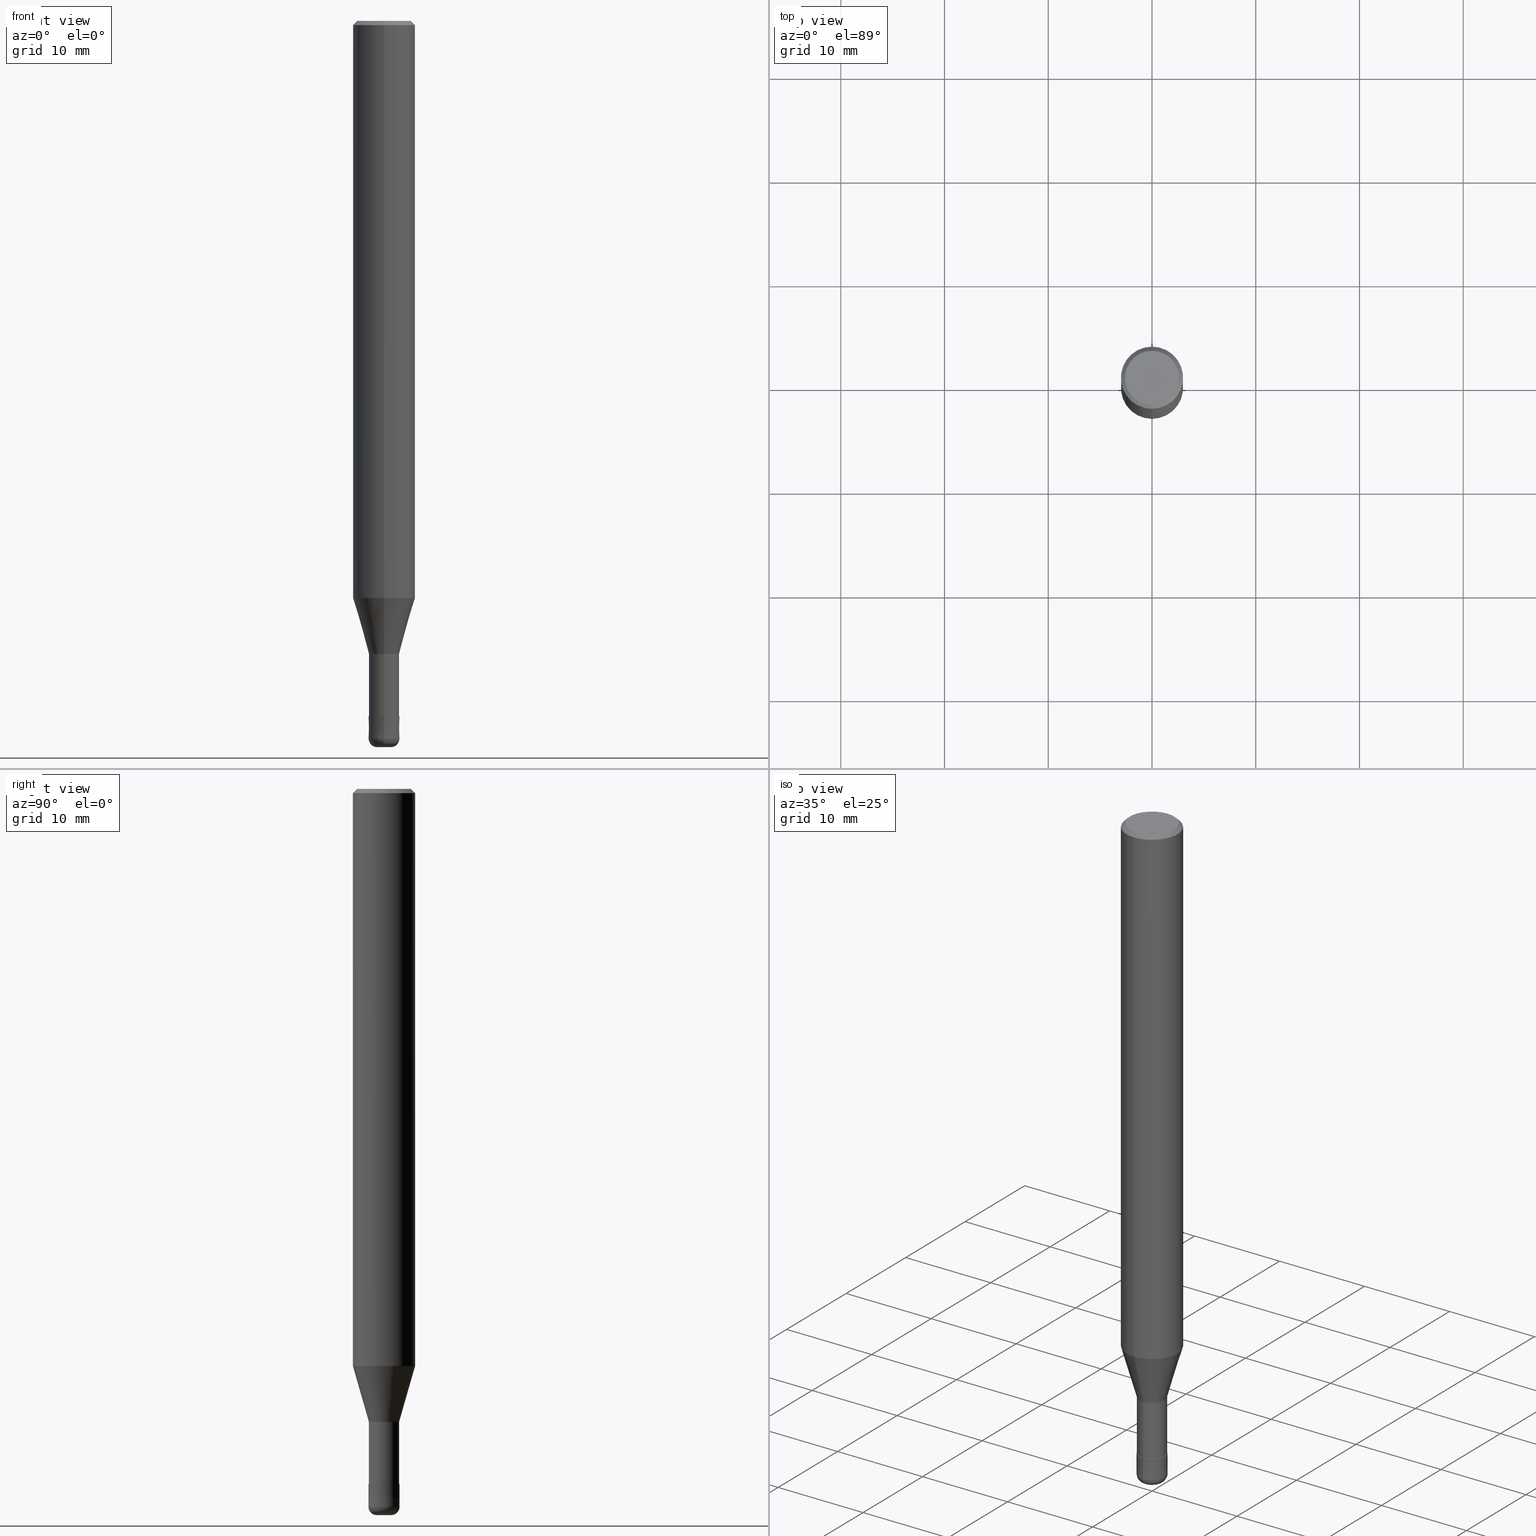
[diagram: canonical four-view strip — front | top / right | iso, engineering-drawing reading convention]
A machine part, canonical four-view strip (front | top / right | iso — engineering-drawing reading convention). The complete STEP part file that produces these views, byte-faithful:
ISO-10303-21;
HEADER;
FILE_DESCRIPTION(('no description'),'unknown implementation level');
FILE_NAME('CRRS4030-08-09-Huellk.stp','  ',('CIMSOURCE GmbH'),('CADClick - KiM GmbH - www.kimweb.de'),'unknown preprocess','ACIS','unknown authorization');
FILE_SCHEMA(('automotive_design'));
ENDSEC;
DATA;
#1=MECHANICAL_DESIGN_GEOMETRIC_PRESENTATION_REPRESENTATION(' ',(#14,#15,#16,#17,#18,#19,#20,#21,#22,#23,#24,#25,#26,#27,#28,#29,#30,#31,#32,#33,#34,#35,#36,#37,#38,#39,#40,#41,#42,#43,#44,#45,#46,#47,#48,#49,#50,#51,#52,#53,#54,#55,#56,#57,#58,#59,#60,#61,#62,#63,#64,#65,#66,#67,#68,#69,#70,#71,#72,#73,#74,#75,#76,#77,#78,#79,#80),#10);
#2=PRODUCT_DEFINITION_CONTEXT('',#81,'design');
#3=APPLICATION_PROTOCOL_DEFINITION('INTERNATIONAL STANDARD','automotive_design',1994,#81);
#4=PRODUCT_CATEGORY_RELATIONSHIP('NONE','NONE',#82,#83);
#5=SHAPE_DEFINITION_REPRESENTATION(#84,#85);
#6=PRODUCT_DEFINITION_CONTEXT('',#86,'design');
#7=APPLICATION_PROTOCOL_DEFINITION('INTERNATIONAL STANDARD','automotive_design',1994,#86);
#8=PRODUCT_CATEGORY_RELATIONSHIP('NONE','NONE',#87,#88);
#9=SHAPE_DEFINITION_REPRESENTATION(#89,#90);
#10= (GEOMETRIC_REPRESENTATION_CONTEXT(3)GLOBAL_UNCERTAINTY_ASSIGNED_CONTEXT((#93))GLOBAL_UNIT_ASSIGNED_CONTEXT((#95,#96,#97))REPRESENTATION_CONTEXT('NONE','WORKSPACE'));
#14=STYLED_ITEM('',(#99),#100);
#15=STYLED_ITEM('',(#101),#102);
#16=STYLED_ITEM('',(#103),#104);
#17=STYLED_ITEM('',(#105),#106);
#18=STYLED_ITEM('',(#107),#108);
#19=STYLED_ITEM('',(#109),#110);
#20=STYLED_ITEM('',(#111),#112);
#21=STYLED_ITEM('',(#113),#114);
#22=STYLED_ITEM('',(#115),#116);
#23=STYLED_ITEM('',(#117),#118);
#24=STYLED_ITEM('',(#119),#120);
#25=STYLED_ITEM('',(#121),#122);
#26=STYLED_ITEM('',(#123),#124);
#27=STYLED_ITEM('',(#125),#126);
#28=STYLED_ITEM('',(#127),#128);
#29=STYLED_ITEM('',(#129),#130);
#30=STYLED_ITEM('',(#131),#132);
#31=STYLED_ITEM('',(#133),#134);
#32=STYLED_ITEM('',(#135),#136);
#33=STYLED_ITEM('',(#137),#138);
#34=STYLED_ITEM('',(#139),#140);
#35=STYLED_ITEM('',(#141),#142);
#36=STYLED_ITEM('',(#143),#144);
#37=STYLED_ITEM('',(#145),#146);
#38=STYLED_ITEM('',(#147),#148);
#39=STYLED_ITEM('',(#149),#150);
#40=STYLED_ITEM('',(#151),#152);
#41=STYLED_ITEM('',(#153),#154);
#42=STYLED_ITEM('',(#155),#156);
#43=STYLED_ITEM('',(#157),#158);
#44=STYLED_ITEM('',(#159),#160);
#45=STYLED_ITEM('',(#161),#162);
#46=STYLED_ITEM('',(#163),#164);
#47=STYLED_ITEM('',(#165),#166);
#48=STYLED_ITEM('',(#167),#168);
#49=STYLED_ITEM('',(#169),#170);
#50=STYLED_ITEM('',(#171),#172);
#51=STYLED_ITEM('',(#173),#174);
#52=STYLED_ITEM('',(#175),#176);
#53=STYLED_ITEM('',(#177),#178);
#54=STYLED_ITEM('',(#179),#180);
#55=STYLED_ITEM('',(#181),#182);
#56=STYLED_ITEM('',(#183),#184);
#57=STYLED_ITEM('',(#185),#186);
#58=STYLED_ITEM('',(#187),#188);
#59=STYLED_ITEM('',(#189),#190);
#60=STYLED_ITEM('',(#191),#192);
#61=STYLED_ITEM('',(#193),#194);
#62=STYLED_ITEM('',(#195),#196);
#63=STYLED_ITEM('',(#197),#198);
#64=STYLED_ITEM('',(#199),#200);
#65=STYLED_ITEM('',(#201),#202);
#66=STYLED_ITEM('',(#203),#204);
#67=STYLED_ITEM('',(#205),#206);
#68=STYLED_ITEM('',(#207),#208);
#69=STYLED_ITEM('',(#209),#210);
#70=STYLED_ITEM('',(#211),#212);
#71=STYLED_ITEM('',(#213),#214);
#72=STYLED_ITEM('',(#215),#216);
#73=STYLED_ITEM('',(#217),#218);
#74=STYLED_ITEM('',(#219),#220);
#75=STYLED_ITEM('',(#221),#222);
#76=STYLED_ITEM('',(#223),#224);
#77=STYLED_ITEM('',(#225),#226);
#78=STYLED_ITEM('',(#227),#228);
#79=STYLED_ITEM('',(#229),#230);
#80=STYLED_ITEM('',(#231),#232);
#81=APPLICATION_CONTEXT(' ');
#82=PRODUCT_CATEGORY('part','NONE');
#83=PRODUCT_RELATED_PRODUCT_CATEGORY('detail',' ',(#233));
#84=PRODUCT_DEFINITION_SHAPE('NONE','NONE',#234);
#85=ADVANCED_BREP_SHAPE_REPRESENTATION('1',(#188,#235),#10);
#86=APPLICATION_CONTEXT(' ');
#87=PRODUCT_CATEGORY('part','NONE');
#88=PRODUCT_RELATED_PRODUCT_CATEGORY('detail',' ',(#236));
#89=PRODUCT_DEFINITION_SHAPE('NONE','NONE',#237);
#90=ADVANCED_BREP_SHAPE_REPRESENTATION('2',(#172,#238),#10);
#93=UNCERTAINTY_MEASURE_WITH_UNIT(LENGTH_MEASURE(1.0E-006),#95,'','');
#95= (CONVERSION_BASED_UNIT('MILLIMETRE',#241)LENGTH_UNIT()NAMED_UNIT(#244));
#96= (NAMED_UNIT(#246)PLANE_ANGLE_UNIT()SI_UNIT($,.RADIAN.));
#97= (NAMED_UNIT(#246)SOLID_ANGLE_UNIT()SI_UNIT($,.STERADIAN.));
#99=PRESENTATION_STYLE_ASSIGNMENT((#252));
#100=ADVANCED_FACE('',(#253),#254,.T.);
#101=PRESENTATION_STYLE_ASSIGNMENT((#255));
#102=ADVANCED_FACE('',(#256),#257,.T.);
#103=PRESENTATION_STYLE_ASSIGNMENT((#258));
#104=VERTEX_POINT('',#259);
#105=PRESENTATION_STYLE_ASSIGNMENT((#260));
#106=ADVANCED_FACE('',(#261),#262,.T.);
#107=PRESENTATION_STYLE_ASSIGNMENT((#263));
#108=EDGE_CURVE('',#216,#104,#264,.T.);
#109=PRESENTATION_STYLE_ASSIGNMENT((#265));
#110=VERTEX_POINT('',#266);
#111=PRESENTATION_STYLE_ASSIGNMENT((#267));
#112=VERTEX_POINT('',#268);
#113=PRESENTATION_STYLE_ASSIGNMENT((#269));
#114=EDGE_CURVE('',#152,#112,#270,.T.);
#115=PRESENTATION_STYLE_ASSIGNMENT((#271));
#116=ADVANCED_FACE('',(#272),#273,.T.);
#117=PRESENTATION_STYLE_ASSIGNMENT((#274));
#118=ADVANCED_FACE('',(#275),#276,.T.);
#119=PRESENTATION_STYLE_ASSIGNMENT((#277));
#120=EDGE_CURVE('',#112,#170,#278,.T.);
#121=PRESENTATION_STYLE_ASSIGNMENT((#279));
#122=ADVANCED_FACE('',(#280),#281,.T.);
#123=PRESENTATION_STYLE_ASSIGNMENT((#282));
#124=VERTEX_POINT('',#283);
#125=PRESENTATION_STYLE_ASSIGNMENT((#284));
#126=EDGE_CURVE('',#204,#198,#285,.T.);
#127=PRESENTATION_STYLE_ASSIGNMENT((#286));
#128=EDGE_CURVE('',#112,#196,#287,.T.);
#129=PRESENTATION_STYLE_ASSIGNMENT((#288));
#130=EDGE_CURVE('',#194,#152,#289,.T.);
#131=PRESENTATION_STYLE_ASSIGNMENT((#290));
#132=ADVANCED_FACE('',(#291),#292,.T.);
#133=PRESENTATION_STYLE_ASSIGNMENT((#293));
#134=VERTEX_POINT('',#294);
#135=PRESENTATION_STYLE_ASSIGNMENT((#295));
#136=EDGE_CURVE('',#206,#104,#296,.T.);
#137=PRESENTATION_STYLE_ASSIGNMENT((#297));
#138=ADVANCED_FACE('',(#298),#299,.T.);
#139=PRESENTATION_STYLE_ASSIGNMENT((#300));
#140=EDGE_CURVE('',#198,#204,#301,.T.);
#141=PRESENTATION_STYLE_ASSIGNMENT((#302));
#142=VERTEX_POINT('',#303);
#143=PRESENTATION_STYLE_ASSIGNMENT((#304));
#144=EDGE_CURVE('',#134,#226,#305,.T.);
#145=PRESENTATION_STYLE_ASSIGNMENT((#306));
#146=EDGE_CURVE('',#110,#216,#307,.T.);
#147=PRESENTATION_STYLE_ASSIGNMENT((#308));
#148=EDGE_CURVE('',#104,#154,#309,.T.);
#149=PRESENTATION_STYLE_ASSIGNMENT((#310));
#150=EDGE_CURVE('',#226,#134,#311,.T.);
#151=PRESENTATION_STYLE_ASSIGNMENT((#312));
#152=VERTEX_POINT('',#313);
#153=PRESENTATION_STYLE_ASSIGNMENT((#314));
#154=VERTEX_POINT('',#315);
#155=PRESENTATION_STYLE_ASSIGNMENT((#316));
#156=ADVANCED_FACE('',(#317),#318,.T.);
#157=PRESENTATION_STYLE_ASSIGNMENT((#319));
#158=EDGE_CURVE('',#196,#112,#320,.T.);
#159=PRESENTATION_STYLE_ASSIGNMENT((#321));
#160=EDGE_CURVE('',#104,#206,#322,.T.);
#161=PRESENTATION_STYLE_ASSIGNMENT((#323));
#162=VERTEX_POINT('',#324);
#163=PRESENTATION_STYLE_ASSIGNMENT((#325));
#164=EDGE_CURVE('',#204,#142,#326,.T.);
#165=PRESENTATION_STYLE_ASSIGNMENT((#327));
#166=EDGE_CURVE('',#134,#142,#328,.T.);
#167=PRESENTATION_STYLE_ASSIGNMENT((#329));
#168=EDGE_CURVE('',#196,#194,#330,.T.);
#169=PRESENTATION_STYLE_ASSIGNMENT((#331));
#170=VERTEX_POINT('',#332);
#171=PRESENTATION_STYLE_ASSIGNMENT((#333));
#172=MANIFOLD_SOLID_BREP('2',#334);
#173=PRESENTATION_STYLE_ASSIGNMENT((#335));
#174=ADVANCED_FACE('',(#336),#337,.T.);
#175=PRESENTATION_STYLE_ASSIGNMENT((#338));
#176=ADVANCED_FACE('',(#339),#340,.T.);
#177=PRESENTATION_STYLE_ASSIGNMENT((#341));
#178=EDGE_CURVE('',#206,#110,#342,.T.);
#179=PRESENTATION_STYLE_ASSIGNMENT((#343));
#180=EDGE_CURVE('',#184,#206,#344,.T.);
#181=PRESENTATION_STYLE_ASSIGNMENT((#345));
#182=EDGE_CURVE('',#162,#170,#346,.T.);
#183=PRESENTATION_STYLE_ASSIGNMENT((#347));
#184=VERTEX_POINT('',#348);
#185=PRESENTATION_STYLE_ASSIGNMENT((#349));
#186=EDGE_CURVE('',#162,#196,#350,.T.);
#187=PRESENTATION_STYLE_ASSIGNMENT((#351));
#188=MANIFOLD_SOLID_BREP('1',#352);
#189=PRESENTATION_STYLE_ASSIGNMENT((#353));
#190=ADVANCED_FACE('',(#354),#355,.T.);
#191=PRESENTATION_STYLE_ASSIGNMENT((#356));
#192=ADVANCED_FACE('',(#357),#358,.T.);
#193=PRESENTATION_STYLE_ASSIGNMENT((#359));
#194=VERTEX_POINT('',#360);
#195=PRESENTATION_STYLE_ASSIGNMENT((#361));
#196=VERTEX_POINT('',#362);
#197=PRESENTATION_STYLE_ASSIGNMENT((#363));
#198=VERTEX_POINT('',#364);
#199=PRESENTATION_STYLE_ASSIGNMENT((#365));
#200=EDGE_CURVE('',#124,#142,#366,.T.);
#201=PRESENTATION_STYLE_ASSIGNMENT((#367));
#202=EDGE_CURVE('',#152,#194,#368,.T.);
#203=PRESENTATION_STYLE_ASSIGNMENT((#369));
#204=VERTEX_POINT('',#370);
#205=PRESENTATION_STYLE_ASSIGNMENT((#371));
#206=VERTEX_POINT('',#372);
#207=PRESENTATION_STYLE_ASSIGNMENT((#373));
#208=ADVANCED_FACE('',(#374,#375),#376,.T.);
#209=PRESENTATION_STYLE_ASSIGNMENT((#377));
#210=ADVANCED_FACE('',(#378),#379,.T.);
#211=PRESENTATION_STYLE_ASSIGNMENT((#380));
#212=ADVANCED_FACE('',(#381),#382,.T.);
#213=PRESENTATION_STYLE_ASSIGNMENT((#383));
#214=EDGE_CURVE('',#154,#184,#384,.T.);
#215=PRESENTATION_STYLE_ASSIGNMENT((#385));
#216=VERTEX_POINT('',#386);
#217=PRESENTATION_STYLE_ASSIGNMENT((#387));
#218=EDGE_CURVE('',#142,#124,#388,.T.);
#219=PRESENTATION_STYLE_ASSIGNMENT((#389));
#220=EDGE_CURVE('',#184,#154,#390,.T.);
#221=PRESENTATION_STYLE_ASSIGNMENT((#391));
#222=EDGE_CURVE('',#216,#110,#392,.T.);
#223=PRESENTATION_STYLE_ASSIGNMENT((#393));
#224=EDGE_CURVE('',#124,#198,#394,.T.);
#225=PRESENTATION_STYLE_ASSIGNMENT((#395));
#226=VERTEX_POINT('',#396);
#227=PRESENTATION_STYLE_ASSIGNMENT((#397));
#228=ADVANCED_FACE('',(#398),#399,.T.);
#229=PRESENTATION_STYLE_ASSIGNMENT((#400));
#230=EDGE_CURVE('',#124,#226,#401,.T.);
#231=PRESENTATION_STYLE_ASSIGNMENT((#402));
#232=EDGE_CURVE('',#170,#162,#403,.T.);
#233=PRODUCT('1','1','PART-1-DESC',(#404));
#234=PRODUCT_DEFINITION('NONE','NONE',#405,#2);
#235=AXIS2_PLACEMENT_3D('',#406,#407,#408);
#236=PRODUCT('2','2','PART-2-DESC',(#409));
#237=PRODUCT_DEFINITION('NONE','NONE',#410,#6);
#238=AXIS2_PLACEMENT_3D('',#411,#412,#413);
#241=LENGTH_MEASURE_WITH_UNIT(LENGTH_MEASURE(1.0),#414);
#244=DIMENSIONAL_EXPONENTS(1.0,0.0,0.0,0.0,0.0,0.0,0.0);
#246=DIMENSIONAL_EXPONENTS(0.0,0.0,0.0,0.0,0.0,0.0,0.0);
#252=SURFACE_STYLE_USAGE(.BOTH.,#415);
#253=FACE_OUTER_BOUND('',#416,.T.);
#254=CONICAL_SURFACE('',#417,2.22995,0.279233847587005);
#255=SURFACE_STYLE_USAGE(.BOTH.,#418);
#256=FACE_OUTER_BOUND('',#419,.T.);
#257=PLANE('',#420);
#258=POINT_STYLE(' ',#421,POSITIVE_LENGTH_MEASURE(1.0E-006),#422);
#259=CARTESIAN_POINT('',(0.0,3.0,-0.399999999999999));
#260=SURFACE_STYLE_USAGE(.BOTH.,#423);
#261=FACE_OUTER_BOUND('',#424,.T.);
#262=CONICAL_SURFACE('',#425,1.49995,4.54545454232357E-005);
#263=CURVE_STYLE('',#426,POSITIVE_LENGTH_MEASURE(1.0E-006),#427);
#264=LINE('',#428,#429);
#265=POINT_STYLE(' ',#430,POSITIVE_LENGTH_MEASURE(1.0E-006),#431);
#266=CARTESIAN_POINT('',(3.18397651993818E-016,-2.6,0.0));
#267=POINT_STYLE(' ',#432,POSITIVE_LENGTH_MEASURE(1.0E-006),#433);
#268=CARTESIAN_POINT('',(1.78786404626298E-016,-1.45995,-61.0));
#269=CURVE_STYLE('',#434,POSITIVE_LENGTH_MEASURE(1.0E-006),#435);
#270=LINE('',#436,#437);
#271=SURFACE_STYLE_USAGE(.BOTH.,#438);
#272=FACE_OUTER_BOUND('',#439,.T.);
#273=CONICAL_SURFACE('',#440,2.8,0.78539816339745);
#274=SURFACE_STYLE_USAGE(.BOTH.,#441);
#275=FACE_OUTER_BOUND('',#442,.T.);
#276=CYLINDRICAL_SURFACE('',#443,1.45995);
#277=CURVE_STYLE('',#444,POSITIVE_LENGTH_MEASURE(1.0E-006),#445);
#278=LINE('',#446,#447);
#279=SURFACE_STYLE_USAGE(.BOTH.,#448);
#280=FACE_OUTER_BOUND('',#449,.T.);
#281=PLANE('',#450);
#282=POINT_STYLE(' ',#451,POSITIVE_LENGTH_MEASURE(1.0E-006),#452);
#283=CARTESIAN_POINT('',(1.83690953073357E-016,-1.5,-69.2));
#284=CURVE_STYLE('',#453,POSITIVE_LENGTH_MEASURE(1.0E-006),#454);
#285=CIRCLE('',#455,0.7);
#286=CURVE_STYLE('',#456,POSITIVE_LENGTH_MEASURE(1.0E-006),#457);
#287=CIRCLE('',#458,1.45995);
#288=CURVE_STYLE('',#459,POSITIVE_LENGTH_MEASURE(1.0E-006),#460);
#289=CIRCLE('',#461,1.45995);
#290=SURFACE_STYLE_USAGE(.BOTH.,#462);
#291=FACE_OUTER_BOUND('',#463,.T.);
#292=TOROIDAL_SURFACE('',#464,0.700000000000001,0.799999999999999);
#293=POINT_STYLE(' ',#465,POSITIVE_LENGTH_MEASURE(1.0E-006),#466);
#294=CARTESIAN_POINT('',(0.0,1.4999,-67.0));
#295=CURVE_STYLE('',#467,POSITIVE_LENGTH_MEASURE(1.0E-006),#468);
#296=CIRCLE('',#469,3.0);
#297=SURFACE_STYLE_USAGE(.BOTH.,#470);
#298=FACE_OUTER_BOUND('',#471,.T.);
#299=CONICAL_SURFACE('',#472,2.22995,0.279233847587005);
#300=CURVE_STYLE('',#473,POSITIVE_LENGTH_MEASURE(1.0E-006),#474);
#301=CIRCLE('',#475,0.7);
#302=POINT_STYLE(' ',#476,POSITIVE_LENGTH_MEASURE(1.0E-006),#477);
#303=CARTESIAN_POINT('',(0.0,1.5,-69.2));
#304=CURVE_STYLE('',#478,POSITIVE_LENGTH_MEASURE(1.0E-006),#479);
#305=CIRCLE('',#480,1.4999);
#306=CURVE_STYLE('',#481,POSITIVE_LENGTH_MEASURE(1.0E-006),#482);
#307=CIRCLE('',#483,2.6);
#308=CURVE_STYLE('',#484,POSITIVE_LENGTH_MEASURE(1.0E-006),#485);
#309=LINE('',#486,#487);
#310=CURVE_STYLE('',#488,POSITIVE_LENGTH_MEASURE(1.0E-006),#489);
#311=CIRCLE('',#490,1.4999);
#312=POINT_STYLE(' ',#491,POSITIVE_LENGTH_MEASURE(1.0E-006),#492);
#313=CARTESIAN_POINT('',(1.78786404626298E-016,-1.45995,-67.0));
#314=POINT_STYLE(' ',#493,POSITIVE_LENGTH_MEASURE(1.0E-006),#494);
#315=CARTESIAN_POINT('',(0.0,3.0,-55.629));
#316=SURFACE_STYLE_USAGE(.BOTH.,#495);
#317=FACE_OUTER_BOUND('',#496,.T.);
#318=CYLINDRICAL_SURFACE('',#497,3.0);
#319=CURVE_STYLE('',#498,POSITIVE_LENGTH_MEASURE(1.0E-006),#499);
#320=CIRCLE('',#500,1.45995);
#321=CURVE_STYLE('',#501,POSITIVE_LENGTH_MEASURE(1.0E-006),#502);
#322=CIRCLE('',#503,3.0);
#323=POINT_STYLE(' ',#504,POSITIVE_LENGTH_MEASURE(1.0E-006),#505);
#324=CARTESIAN_POINT('',(0.0,2.99995,-55.629));
#325=CURVE_STYLE('',#506,POSITIVE_LENGTH_MEASURE(1.0E-006),#507);
#326=CIRCLE('',#508,0.799999999999999);
#327=CURVE_STYLE('',#509,POSITIVE_LENGTH_MEASURE(1.0E-006),#510);
#328=LINE('',#511,#512);
#329=CURVE_STYLE('',#513,POSITIVE_LENGTH_MEASURE(1.0E-006),#514);
#330=LINE('',#515,#516);
#331=POINT_STYLE(' ',#517,POSITIVE_LENGTH_MEASURE(1.0E-006),#518);
#332=CARTESIAN_POINT('',(3.67375783114944E-016,-2.99995,-55.629));
#333=SURFACE_STYLE_USAGE(.BOTH.,#519);
#334=CLOSED_SHELL('',(#132,#174,#228,#106,#210,#212));
#335=SURFACE_STYLE_USAGE(.BOTH.,#520);
#336=FACE_OUTER_BOUND('',#521,.T.);
#337=CONICAL_SURFACE('',#522,1.49995,4.54545454232357E-005);
#338=SURFACE_STYLE_USAGE(.BOTH.,#523);
#339=FACE_OUTER_BOUND('',#524,.T.);
#340=CYLINDRICAL_SURFACE('',#525,1.45995);
#341=CURVE_STYLE('',#526,POSITIVE_LENGTH_MEASURE(1.0E-006),#527);
#342=LINE('',#528,#529);
#343=CURVE_STYLE('',#530,POSITIVE_LENGTH_MEASURE(1.0E-006),#531);
#344=LINE('',#532,#533);
#345=CURVE_STYLE('',#534,POSITIVE_LENGTH_MEASURE(1.0E-006),#535);
#346=CIRCLE('',#536,2.99995);
#347=POINT_STYLE(' ',#537,POSITIVE_LENGTH_MEASURE(1.0E-006),#538);
#348=CARTESIAN_POINT('',(3.67381906146713E-016,-3.0,-55.629));
#349=CURVE_STYLE('',#539,POSITIVE_LENGTH_MEASURE(1.0E-006),#540);
#350=LINE('',#541,#542);
#351=SURFACE_STYLE_USAGE(.BOTH.,#543);
#352=CLOSED_SHELL('',(#176,#100,#156,#190,#208,#102,#116,#192,#138,#118,#122));
#353=SURFACE_STYLE_USAGE(.BOTH.,#544);
#354=FACE_OUTER_BOUND('',#545,.T.);
#355=CONICAL_SURFACE('',#546,2.8,0.78539816339745);
#356=SURFACE_STYLE_USAGE(.BOTH.,#547);
#357=FACE_OUTER_BOUND('',#548,.T.);
#358=CYLINDRICAL_SURFACE('',#549,3.0);
#359=POINT_STYLE(' ',#550,POSITIVE_LENGTH_MEASURE(1.0E-006),#551);
#360=CARTESIAN_POINT('',(0.0,1.45995,-67.0));
#361=POINT_STYLE(' ',#552,POSITIVE_LENGTH_MEASURE(1.0E-006),#553);
#362=CARTESIAN_POINT('',(0.0,1.45995,-61.0));
#363=POINT_STYLE(' ',#554,POSITIVE_LENGTH_MEASURE(1.0E-006),#555);
#364=CARTESIAN_POINT('',(8.57224447675664E-017,-0.7,-70.0));
#365=CURVE_STYLE('',#556,POSITIVE_LENGTH_MEASURE(1.0E-006),#557);
#366=CIRCLE('',#558,1.5);
#367=CURVE_STYLE('',#559,POSITIVE_LENGTH_MEASURE(1.0E-006),#560);
#368=CIRCLE('',#561,1.45995);
#369=POINT_STYLE(' ',#562,POSITIVE_LENGTH_MEASURE(1.0E-006),#563);
#370=CARTESIAN_POINT('',(0.0,0.7,-70.0));
#371=POINT_STYLE(' ',#564,POSITIVE_LENGTH_MEASURE(1.0E-006),#565);
#372=CARTESIAN_POINT('',(3.67381906146713E-016,-3.0,-0.399999999999999));
#373=SURFACE_STYLE_USAGE(.BOTH.,#566);
#374=FACE_OUTER_BOUND('',#567,.T.);
#375=FACE_BOUND('',#568,.T.);
#376=PLANE('',#569);
#377=SURFACE_STYLE_USAGE(.BOTH.,#570);
#378=FACE_OUTER_BOUND('',#571,.T.);
#379=TOROIDAL_SURFACE('',#572,0.700000000000001,0.799999999999999);
#380=SURFACE_STYLE_USAGE(.BOTH.,#573);
#381=FACE_OUTER_BOUND('',#574,.T.);
#382=PLANE('',#575);
#383=CURVE_STYLE('',#576,POSITIVE_LENGTH_MEASURE(1.0E-006),#577);
#384=CIRCLE('',#578,3.0);
#385=POINT_STYLE(' ',#579,POSITIVE_LENGTH_MEASURE(1.0E-006),#580);
#386=CARTESIAN_POINT('',(0.0,2.6,0.0));
#387=CURVE_STYLE('',#581,POSITIVE_LENGTH_MEASURE(1.0E-006),#582);
#388=CIRCLE('',#583,1.5);
#389=CURVE_STYLE('',#584,POSITIVE_LENGTH_MEASURE(1.0E-006),#585);
#390=CIRCLE('',#586,3.0);
#391=CURVE_STYLE('',#587,POSITIVE_LENGTH_MEASURE(1.0E-006),#588);
#392=CIRCLE('',#589,2.6);
#393=CURVE_STYLE('',#590,POSITIVE_LENGTH_MEASURE(1.0E-006),#591);
#394=CIRCLE('',#592,0.799999999999999);
#395=POINT_STYLE(' ',#593,POSITIVE_LENGTH_MEASURE(1.0E-006),#594);
#396=CARTESIAN_POINT('',(1.83678707009818E-016,-1.4999,-67.0));
#397=SURFACE_STYLE_USAGE(.BOTH.,#595);
#398=FACE_OUTER_BOUND('',#596,.T.);
#399=PLANE('',#597);
#400=CURVE_STYLE('',#598,POSITIVE_LENGTH_MEASURE(1.0E-006),#599);
#401=LINE('',#600,#601);
#402=CURVE_STYLE('',#602,POSITIVE_LENGTH_MEASURE(1.0E-006),#603);
#403=CIRCLE('',#604,2.99995);
#404=PRODUCT_CONTEXT('',#81,'mechanical');
#405=PRODUCT_DEFINITION_FORMATION_WITH_SPECIFIED_SOURCE(' ','NONE',#233,.NOT_KNOWN.);
#406=CARTESIAN_POINT('',(0.0,0.0,0.0));
#407=DIRECTION('',(0.0,0.0,1.0));
#408=DIRECTION('',(1.0,0.0,0.0));
#409=PRODUCT_CONTEXT('',#86,'mechanical');
#410=PRODUCT_DEFINITION_FORMATION_WITH_SPECIFIED_SOURCE(' ','NONE',#236,.NOT_KNOWN.);
#411=CARTESIAN_POINT('',(0.0,0.0,0.0));
#412=DIRECTION('',(0.0,0.0,1.0));
#413=DIRECTION('',(1.0,0.0,0.0));
#414= (NAMED_UNIT(#244)LENGTH_UNIT()SI_UNIT(.MILLI.,.METRE.));
#415=SURFACE_SIDE_STYLE('',(#606));
#416=EDGE_LOOP('',(#607,#608,#609,#610));
#417=AXIS2_PLACEMENT_3D('',#611,#612,#613);
#418=SURFACE_SIDE_STYLE('',(#614));
#419=EDGE_LOOP('',(#615,#616));
#420=AXIS2_PLACEMENT_3D('',#617,#618,#619);
#421=PRE_DEFINED_MARKER('');
#422=COLOUR_RGB('',0.498039215803146,0.498039215803146,0.498039215803146);
#423=SURFACE_SIDE_STYLE('',(#620));
#424=EDGE_LOOP('',(#621,#622,#623,#624));
#425=AXIS2_PLACEMENT_3D('',#625,#626,#627);
#426=DRAUGHTING_PRE_DEFINED_CURVE_FONT('continuous');
#427=COLOUR_RGB('',0.498039215803146,0.498039215803146,0.498039215803146);
#428=CARTESIAN_POINT('',(-3.42889779070266E-016,2.8,-0.200000000000003));
#429=VECTOR('',#628,1.0);
#430=PRE_DEFINED_MARKER('');
#431=COLOUR_RGB('',0.498039215803146,0.498039215803146,0.498039215803146);
#432=PRE_DEFINED_MARKER('');
#433=COLOUR_RGB('',0.498039215803146,0.498039215803146,0.498039215803146);
#434=DRAUGHTING_PRE_DEFINED_CURVE_FONT('continuous');
#435=COLOUR_RGB('',0.498039215803146,0.498039215803146,0.498039215803146);
#436=CARTESIAN_POINT('',(1.78786404626298E-016,-1.45995,-64.0));
#437=VECTOR('',#629,1.0);
#438=SURFACE_SIDE_STYLE('',(#630));
#439=EDGE_LOOP('',(#631,#632,#633,#634));
#440=AXIS2_PLACEMENT_3D('',#635,#636,#637);
#441=SURFACE_SIDE_STYLE('',(#638));
#442=EDGE_LOOP('',(#639,#640,#641,#642));
#443=AXIS2_PLACEMENT_3D('',#643,#644,#645);
#444=DRAUGHTING_PRE_DEFINED_CURVE_FONT('continuous');
#445=COLOUR_RGB('',0.498039215803146,0.498039215803146,0.498039215803146);
#446=CARTESIAN_POINT('',(2.73081093870621E-016,-2.22995,-58.3145));
#447=VECTOR('',#646,1.0);
#448=SURFACE_SIDE_STYLE('',(#647));
#449=EDGE_LOOP('',(#648,#649));
#450=AXIS2_PLACEMENT_3D('',#650,#651,#652);
#451=PRE_DEFINED_MARKER('');
#452=COLOUR_RGB('',0.800000011920929,0.800000011920929,0.800000011920929);
#453=DRAUGHTING_PRE_DEFINED_CURVE_FONT('continuous');
#454=COLOUR_RGB('',0.800000011920929,0.800000011920929,0.800000011920929);
#455=AXIS2_PLACEMENT_3D('',#653,#654,#655);
#456=DRAUGHTING_PRE_DEFINED_CURVE_FONT('continuous');
#457=COLOUR_RGB('',0.498039215803146,0.498039215803146,0.498039215803146);
#458=AXIS2_PLACEMENT_3D('',#656,#657,#658);
#459=DRAUGHTING_PRE_DEFINED_CURVE_FONT('continuous');
#460=COLOUR_RGB('',0.498039215803146,0.498039215803146,0.498039215803146);
#461=AXIS2_PLACEMENT_3D('',#659,#660,#661);
#462=SURFACE_SIDE_STYLE('',(#662));
#463=EDGE_LOOP('',(#663,#664,#665,#666));
#464=AXIS2_PLACEMENT_3D('',#667,#668,#669);
#465=PRE_DEFINED_MARKER('');
#466=COLOUR_RGB('',0.800000011920929,0.800000011920929,0.800000011920929);
#467=DRAUGHTING_PRE_DEFINED_CURVE_FONT('continuous');
#468=COLOUR_RGB('',0.498039215803146,0.498039215803146,0.498039215803146);
#469=AXIS2_PLACEMENT_3D('',#670,#671,#672);
#470=SURFACE_SIDE_STYLE('',(#673));
#471=EDGE_LOOP('',(#674,#675,#676,#677));
#472=AXIS2_PLACEMENT_3D('',#678,#679,#680);
#473=DRAUGHTING_PRE_DEFINED_CURVE_FONT('continuous');
#474=COLOUR_RGB('',0.800000011920929,0.800000011920929,0.800000011920929);
#475=AXIS2_PLACEMENT_3D('',#681,#682,#683);
#476=PRE_DEFINED_MARKER('');
#477=COLOUR_RGB('',0.800000011920929,0.800000011920929,0.800000011920929);
#478=DRAUGHTING_PRE_DEFINED_CURVE_FONT('continuous');
#479=COLOUR_RGB('',0.800000011920929,0.800000011920929,0.800000011920929);
#480=AXIS2_PLACEMENT_3D('',#684,#685,#686);
#481=DRAUGHTING_PRE_DEFINED_CURVE_FONT('continuous');
#482=COLOUR_RGB('',0.498039215803146,0.498039215803146,0.498039215803146);
#483=AXIS2_PLACEMENT_3D('',#687,#688,#689);
#484=DRAUGHTING_PRE_DEFINED_CURVE_FONT('continuous');
#485=COLOUR_RGB('',0.498039215803146,0.498039215803146,0.498039215803146);
#486=CARTESIAN_POINT('',(-3.67381906146713E-016,3.0,-28.0145));
#487=VECTOR('',#690,1.0);
#488=DRAUGHTING_PRE_DEFINED_CURVE_FONT('continuous');
#489=COLOUR_RGB('',0.800000011920929,0.800000011920929,0.800000011920929);
#490=AXIS2_PLACEMENT_3D('',#691,#692,#693);
#491=PRE_DEFINED_MARKER('');
#492=COLOUR_RGB('',0.498039215803146,0.498039215803146,0.498039215803146);
#493=PRE_DEFINED_MARKER('');
#494=COLOUR_RGB('',0.498039215803146,0.498039215803146,0.498039215803146);
#495=SURFACE_SIDE_STYLE('',(#694));
#496=EDGE_LOOP('',(#695,#696,#697,#698));
#497=AXIS2_PLACEMENT_3D('',#699,#700,#701);
#498=DRAUGHTING_PRE_DEFINED_CURVE_FONT('continuous');
#499=COLOUR_RGB('',0.498039215803146,0.498039215803146,0.498039215803146);
#500=AXIS2_PLACEMENT_3D('',#702,#703,#704);
#501=DRAUGHTING_PRE_DEFINED_CURVE_FONT('continuous');
#502=COLOUR_RGB('',0.498039215803146,0.498039215803146,0.498039215803146);
#503=AXIS2_PLACEMENT_3D('',#705,#706,#707);
#504=PRE_DEFINED_MARKER('');
#505=COLOUR_RGB('',0.498039215803146,0.498039215803146,0.498039215803146);
#506=DRAUGHTING_PRE_DEFINED_CURVE_FONT('continuous');
#507=COLOUR_RGB('',0.800000011920929,0.800000011920929,0.800000011920929);
#508=AXIS2_PLACEMENT_3D('',#708,#709,#710);
#509=DRAUGHTING_PRE_DEFINED_CURVE_FONT('continuous');
#510=COLOUR_RGB('',0.800000011920929,0.800000011920929,0.800000011920929);
#511=CARTESIAN_POINT('',(-1.83684830041587E-016,1.49995,-68.1));
#512=VECTOR('',#711,1.0);
#513=DRAUGHTING_PRE_DEFINED_CURVE_FONT('continuous');
#514=COLOUR_RGB('',0.498039215803146,0.498039215803146,0.498039215803146);
#515=CARTESIAN_POINT('',(-1.78786404626298E-016,1.45995,-64.0));
#516=VECTOR('',#712,1.0);
#517=PRE_DEFINED_MARKER('');
#518=COLOUR_RGB('',0.498039215803146,0.498039215803146,0.498039215803146);
#519=SURFACE_SIDE_STYLE('',(#713));
#520=SURFACE_SIDE_STYLE('',(#714));
#521=EDGE_LOOP('',(#715,#716,#717,#718));
#522=AXIS2_PLACEMENT_3D('',#719,#720,#721);
#523=SURFACE_SIDE_STYLE('',(#722));
#524=EDGE_LOOP('',(#723,#724,#725,#726));
#525=AXIS2_PLACEMENT_3D('',#727,#728,#729);
#526=DRAUGHTING_PRE_DEFINED_CURVE_FONT('continuous');
#527=COLOUR_RGB('',0.498039215803146,0.498039215803146,0.498039215803146);
#528=CARTESIAN_POINT('',(3.42889779070266E-016,-2.8,-0.200000000000003));
#529=VECTOR('',#730,1.0);
#530=DRAUGHTING_PRE_DEFINED_CURVE_FONT('continuous');
#531=COLOUR_RGB('',0.498039215803146,0.498039215803146,0.498039215803146);
#532=CARTESIAN_POINT('',(3.67381906146713E-016,-3.0,-28.0145));
#533=VECTOR('',#731,1.0);
#534=DRAUGHTING_PRE_DEFINED_CURVE_FONT('continuous');
#535=COLOUR_RGB('',0.498039215803146,0.498039215803146,0.498039215803146);
#536=AXIS2_PLACEMENT_3D('',#732,#733,#734);
#537=PRE_DEFINED_MARKER('');
#538=COLOUR_RGB('',0.498039215803146,0.498039215803146,0.498039215803146);
#539=DRAUGHTING_PRE_DEFINED_CURVE_FONT('continuous');
#540=COLOUR_RGB('',0.498039215803146,0.498039215803146,0.498039215803146);
#541=CARTESIAN_POINT('',(-2.73081093870621E-016,2.22995,-58.3145));
#542=VECTOR('',#735,1.0);
#543=SURFACE_SIDE_STYLE('',(#736));
#544=SURFACE_SIDE_STYLE('',(#737));
#545=EDGE_LOOP('',(#738,#739,#740,#741));
#546=AXIS2_PLACEMENT_3D('',#742,#743,#744);
#547=SURFACE_SIDE_STYLE('',(#745));
#548=EDGE_LOOP('',(#746,#747,#748,#749));
#549=AXIS2_PLACEMENT_3D('',#750,#751,#752);
#550=PRE_DEFINED_MARKER('');
#551=COLOUR_RGB('',0.498039215803146,0.498039215803146,0.498039215803146);
#552=PRE_DEFINED_MARKER('');
#553=COLOUR_RGB('',0.498039215803146,0.498039215803146,0.498039215803146);
#554=PRE_DEFINED_MARKER('');
#555=COLOUR_RGB('',0.800000011920929,0.800000011920929,0.800000011920929);
#556=DRAUGHTING_PRE_DEFINED_CURVE_FONT('continuous');
#557=COLOUR_RGB('',0.800000011920929,0.800000011920929,0.800000011920929);
#558=AXIS2_PLACEMENT_3D('',#753,#754,#755);
#559=DRAUGHTING_PRE_DEFINED_CURVE_FONT('continuous');
#560=COLOUR_RGB('',0.498039215803146,0.498039215803146,0.498039215803146);
#561=AXIS2_PLACEMENT_3D('',#756,#757,#758);
#562=PRE_DEFINED_MARKER('');
#563=COLOUR_RGB('',0.800000011920929,0.800000011920929,0.800000011920929);
#564=PRE_DEFINED_MARKER('');
#565=COLOUR_RGB('',0.498039215803146,0.498039215803146,0.498039215803146);
#566=SURFACE_SIDE_STYLE('',(#759));
#567=EDGE_LOOP('',(#760,#761));
#568=EDGE_LOOP('',(#762,#763));
#569=AXIS2_PLACEMENT_3D('',#764,#765,#766);
#570=SURFACE_SIDE_STYLE('',(#767));
#571=EDGE_LOOP('',(#768,#769,#770,#771));
#572=AXIS2_PLACEMENT_3D('',#772,#773,#774);
#573=SURFACE_SIDE_STYLE('',(#775));
#574=EDGE_LOOP('',(#776,#777));
#575=AXIS2_PLACEMENT_3D('',#778,#779,#780);
#576=DRAUGHTING_PRE_DEFINED_CURVE_FONT('continuous');
#577=COLOUR_RGB('',0.498039215803146,0.498039215803146,0.498039215803146);
#578=AXIS2_PLACEMENT_3D('',#781,#782,#783);
#579=PRE_DEFINED_MARKER('');
#580=COLOUR_RGB('',0.498039215803146,0.498039215803146,0.498039215803146);
#581=DRAUGHTING_PRE_DEFINED_CURVE_FONT('continuous');
#582=COLOUR_RGB('',0.800000011920929,0.800000011920929,0.800000011920929);
#583=AXIS2_PLACEMENT_3D('',#784,#785,#786);
#584=DRAUGHTING_PRE_DEFINED_CURVE_FONT('continuous');
#585=COLOUR_RGB('',0.498039215803146,0.498039215803146,0.498039215803146);
#586=AXIS2_PLACEMENT_3D('',#787,#788,#789);
#587=DRAUGHTING_PRE_DEFINED_CURVE_FONT('continuous');
#588=COLOUR_RGB('',0.498039215803146,0.498039215803146,0.498039215803146);
#589=AXIS2_PLACEMENT_3D('',#790,#791,#792);
#590=DRAUGHTING_PRE_DEFINED_CURVE_FONT('continuous');
#591=COLOUR_RGB('',0.800000011920929,0.800000011920929,0.800000011920929);
#592=AXIS2_PLACEMENT_3D('',#793,#794,#795);
#593=PRE_DEFINED_MARKER('');
#594=COLOUR_RGB('',0.800000011920929,0.800000011920929,0.800000011920929);
#595=SURFACE_SIDE_STYLE('',(#796));
#596=EDGE_LOOP('',(#797,#798));
#597=AXIS2_PLACEMENT_3D('',#799,#800,#801);
#598=DRAUGHTING_PRE_DEFINED_CURVE_FONT('continuous');
#599=COLOUR_RGB('',0.800000011920929,0.800000011920929,0.800000011920929);
#600=CARTESIAN_POINT('',(1.83684830041587E-016,-1.49995,-68.1));
#601=VECTOR('',#802,1.0);
#602=DRAUGHTING_PRE_DEFINED_CURVE_FONT('continuous');
#603=COLOUR_RGB('',0.498039215803146,0.498039215803146,0.498039215803146);
#604=AXIS2_PLACEMENT_3D('',#803,#804,#805);
#606=SURFACE_STYLE_FILL_AREA(#806);
#607=ORIENTED_EDGE('',*,*,#186,.F.);
#608=ORIENTED_EDGE('',*,*,#182,.T.);
#609=ORIENTED_EDGE('',*,*,#120,.F.);
#610=ORIENTED_EDGE('',*,*,#158,.F.);
#611=CARTESIAN_POINT('',(0.0,0.0,-58.3145));
#612=DIRECTION('',(-0.0,-0.0,1.0));
#613=DIRECTION('',(0.0,1.0,0.0));
#614=SURFACE_STYLE_FILL_AREA(#807);
#615=ORIENTED_EDGE('',*,*,#222,.F.);
#616=ORIENTED_EDGE('',*,*,#146,.F.);
#617=CARTESIAN_POINT('',(0.0,1.3,0.0));
#618=DIRECTION('',(-0.0,0.0,1.0));
#619=DIRECTION('',(0.0,-1.0,0.0));
#620=SURFACE_STYLE_FILL_AREA(#808);
#621=ORIENTED_EDGE('',*,*,#166,.T.);
#622=ORIENTED_EDGE('',*,*,#200,.F.);
#623=ORIENTED_EDGE('',*,*,#230,.T.);
#624=ORIENTED_EDGE('',*,*,#150,.T.);
#625=CARTESIAN_POINT('',(0.0,0.0,-68.1));
#626=DIRECTION('',(0.0,-0.0,-1.0));
#627=DIRECTION('',(0.0,1.0,0.0));
#628=DIRECTION('',(-8.65927457071937E-017,0.707106781186549,-0.707106781186546));
#629=DIRECTION('',(-0.0,-0.0,1.0));
#630=SURFACE_STYLE_FILL_AREA(#809);
#631=ORIENTED_EDGE('',*,*,#108,.T.);
#632=ORIENTED_EDGE('',*,*,#136,.F.);
#633=ORIENTED_EDGE('',*,*,#178,.T.);
#634=ORIENTED_EDGE('',*,*,#146,.T.);
#635=CARTESIAN_POINT('',(0.0,0.0,-0.200000000000003));
#636=DIRECTION('',(0.0,-0.0,-1.0));
#637=DIRECTION('',(0.0,1.0,0.0));
#638=SURFACE_STYLE_FILL_AREA(#810);
#639=ORIENTED_EDGE('',*,*,#168,.T.);
#640=ORIENTED_EDGE('',*,*,#202,.F.);
#641=ORIENTED_EDGE('',*,*,#114,.T.);
#642=ORIENTED_EDGE('',*,*,#128,.T.);
#643=CARTESIAN_POINT('',(0.0,0.0,-64.0));
#644=DIRECTION('',(-0.0,-0.0,1.0));
#645=DIRECTION('',(0.0,1.0,0.0));
#646=DIRECTION('',(3.37525087950305E-017,-0.275619252584134,0.961266886772328));
#647=SURFACE_STYLE_FILL_AREA(#811);
#648=ORIENTED_EDGE('',*,*,#130,.T.);
#649=ORIENTED_EDGE('',*,*,#202,.T.);
#650=CARTESIAN_POINT('',(0.0,0.729975,-67.0));
#651=DIRECTION('',(0.0,0.0,-1.0));
#652=DIRECTION('',(0.0,1.0,0.0));
#653=CARTESIAN_POINT('',(0.0,0.0,-70.0));
#654=DIRECTION('',(0.0,0.0,-1.0));
#655=DIRECTION('',(0.0,1.0,0.0));
#656=CARTESIAN_POINT('',(0.0,0.0,-61.0));
#657=DIRECTION('',(0.0,0.0,-1.0));
#658=DIRECTION('',(0.0,1.0,0.0));
#659=CARTESIAN_POINT('',(0.0,0.0,-67.0));
#660=DIRECTION('',(0.0,0.0,-1.0));
#661=DIRECTION('',(0.0,1.0,0.0));
#662=SURFACE_STYLE_FILL_AREA(#812);
#663=ORIENTED_EDGE('',*,*,#224,.F.);
#664=ORIENTED_EDGE('',*,*,#200,.T.);
#665=ORIENTED_EDGE('',*,*,#164,.F.);
#666=ORIENTED_EDGE('',*,*,#140,.F.);
#667=CARTESIAN_POINT('',(0.0,0.0,-69.2));
#668=DIRECTION('',(0.0,0.0,-1.0));
#669=DIRECTION('',(0.0,-1.0,0.0));
#670=CARTESIAN_POINT('',(0.0,0.0,-0.399999999999999));
#671=DIRECTION('',(0.0,0.0,-1.0));
#672=DIRECTION('',(0.0,1.0,0.0));
#673=SURFACE_STYLE_FILL_AREA(#813);
#674=ORIENTED_EDGE('',*,*,#186,.T.);
#675=ORIENTED_EDGE('',*,*,#128,.F.);
#676=ORIENTED_EDGE('',*,*,#120,.T.);
#677=ORIENTED_EDGE('',*,*,#232,.T.);
#678=CARTESIAN_POINT('',(0.0,0.0,-58.3145));
#679=DIRECTION('',(-0.0,-0.0,1.0));
#680=DIRECTION('',(0.0,1.0,0.0));
#681=CARTESIAN_POINT('',(0.0,0.0,-70.0));
#682=DIRECTION('',(0.0,0.0,-1.0));
#683=DIRECTION('',(0.0,1.0,0.0));
#684=CARTESIAN_POINT('',(0.0,0.0,-67.0));
#685=DIRECTION('',(0.0,0.0,-1.0));
#686=DIRECTION('',(0.0,1.0,0.0));
#687=CARTESIAN_POINT('',(0.0,0.0,0.0));
#688=DIRECTION('',(0.0,0.0,-1.0));
#689=DIRECTION('',(0.0,1.0,0.0));
#690=DIRECTION('',(0.0,0.0,-1.0));
#691=CARTESIAN_POINT('',(0.0,0.0,-67.0));
#692=DIRECTION('',(0.0,0.0,-1.0));
#693=DIRECTION('',(0.0,1.0,0.0));
#694=SURFACE_STYLE_FILL_AREA(#814);
#695=ORIENTED_EDGE('',*,*,#148,.F.);
#696=ORIENTED_EDGE('',*,*,#160,.T.);
#697=ORIENTED_EDGE('',*,*,#180,.F.);
#698=ORIENTED_EDGE('',*,*,#214,.F.);
#699=CARTESIAN_POINT('',(0.0,0.0,-28.0145));
#700=DIRECTION('',(-0.0,-0.0,1.0));
#701=DIRECTION('',(0.0,1.0,0.0));
#702=CARTESIAN_POINT('',(0.0,0.0,-61.0));
#703=DIRECTION('',(0.0,0.0,-1.0));
#704=DIRECTION('',(0.0,1.0,0.0));
#705=CARTESIAN_POINT('',(0.0,0.0,-0.399999999999999));
#706=DIRECTION('',(0.0,0.0,-1.0));
#707=DIRECTION('',(0.0,1.0,0.0));
#708=CARTESIAN_POINT('',(-8.57224447675665E-017,0.700000000000001,-69.2));
#709=DIRECTION('',(1.0,1.22460635382238E-016,0.0));
#710=DIRECTION('',(-1.22460635382238E-016,1.0,0.0));
#711=DIRECTION('',(-5.56639251162342E-021,4.54545454075833E-005,-0.999999998966942));
#712=DIRECTION('',(0.0,0.0,-1.0));
#713=SURFACE_STYLE_FILL_AREA(#815);
#714=SURFACE_STYLE_FILL_AREA(#816);
#715=ORIENTED_EDGE('',*,*,#166,.F.);
#716=ORIENTED_EDGE('',*,*,#144,.T.);
#717=ORIENTED_EDGE('',*,*,#230,.F.);
#718=ORIENTED_EDGE('',*,*,#218,.F.);
#719=CARTESIAN_POINT('',(0.0,0.0,-68.1));
#720=DIRECTION('',(0.0,-0.0,-1.0));
#721=DIRECTION('',(0.0,1.0,0.0));
#722=SURFACE_STYLE_FILL_AREA(#817);
#723=ORIENTED_EDGE('',*,*,#168,.F.);
#724=ORIENTED_EDGE('',*,*,#158,.T.);
#725=ORIENTED_EDGE('',*,*,#114,.F.);
#726=ORIENTED_EDGE('',*,*,#130,.F.);
#727=CARTESIAN_POINT('',(0.0,0.0,-64.0));
#728=DIRECTION('',(-0.0,-0.0,1.0));
#729=DIRECTION('',(0.0,1.0,0.0));
#730=DIRECTION('',(-8.65927457071937E-017,0.707106781186549,0.707106781186546));
#731=DIRECTION('',(-0.0,-0.0,1.0));
#732=CARTESIAN_POINT('',(0.0,0.0,-55.629));
#733=DIRECTION('',(0.0,0.0,-1.0));
#734=DIRECTION('',(0.0,1.0,0.0));
#735=DIRECTION('',(3.37525087950305E-017,-0.275619252584134,-0.961266886772328));
#736=SURFACE_STYLE_FILL_AREA(#818);
#737=SURFACE_STYLE_FILL_AREA(#819);
#738=ORIENTED_EDGE('',*,*,#108,.F.);
#739=ORIENTED_EDGE('',*,*,#222,.T.);
#740=ORIENTED_EDGE('',*,*,#178,.F.);
#741=ORIENTED_EDGE('',*,*,#160,.F.);
#742=CARTESIAN_POINT('',(0.0,0.0,-0.200000000000003));
#743=DIRECTION('',(0.0,-0.0,-1.0));
#744=DIRECTION('',(0.0,1.0,0.0));
#745=SURFACE_STYLE_FILL_AREA(#820);
#746=ORIENTED_EDGE('',*,*,#148,.T.);
#747=ORIENTED_EDGE('',*,*,#220,.F.);
#748=ORIENTED_EDGE('',*,*,#180,.T.);
#749=ORIENTED_EDGE('',*,*,#136,.T.);
#750=CARTESIAN_POINT('',(0.0,0.0,-28.0145));
#751=DIRECTION('',(-0.0,-0.0,1.0));
#752=DIRECTION('',(0.0,1.0,0.0));
#753=CARTESIAN_POINT('',(0.0,0.0,-69.2));
#754=DIRECTION('',(0.0,0.0,-1.0));
#755=DIRECTION('',(0.0,1.0,0.0));
#756=CARTESIAN_POINT('',(0.0,0.0,-67.0));
#757=DIRECTION('',(0.0,0.0,-1.0));
#758=DIRECTION('',(0.0,1.0,0.0));
#759=SURFACE_STYLE_FILL_AREA(#821);
#760=ORIENTED_EDGE('',*,*,#214,.T.);
#761=ORIENTED_EDGE('',*,*,#220,.T.);
#762=ORIENTED_EDGE('',*,*,#182,.F.);
#763=ORIENTED_EDGE('',*,*,#232,.F.);
#764=CARTESIAN_POINT('',(0.0,1.5,-55.629));
#765=DIRECTION('',(0.0,0.0,-1.0));
#766=DIRECTION('',(0.0,1.0,0.0));
#767=SURFACE_STYLE_FILL_AREA(#822);
#768=ORIENTED_EDGE('',*,*,#224,.T.);
#769=ORIENTED_EDGE('',*,*,#126,.F.);
#770=ORIENTED_EDGE('',*,*,#164,.T.);
#771=ORIENTED_EDGE('',*,*,#218,.T.);
#772=CARTESIAN_POINT('',(0.0,0.0,-69.2));
#773=DIRECTION('',(0.0,0.0,-1.0));
#774=DIRECTION('',(0.0,-1.0,0.0));
#775=SURFACE_STYLE_FILL_AREA(#823);
#776=ORIENTED_EDGE('',*,*,#126,.T.);
#777=ORIENTED_EDGE('',*,*,#140,.T.);
#778=CARTESIAN_POINT('',(0.0,0.35,-70.0));
#779=DIRECTION('',(0.0,0.0,-1.0));
#780=DIRECTION('',(0.0,1.0,0.0));
#781=CARTESIAN_POINT('',(0.0,0.0,-55.629));
#782=DIRECTION('',(0.0,0.0,-1.0));
#783=DIRECTION('',(0.0,1.0,0.0));
#784=CARTESIAN_POINT('',(0.0,0.0,-69.2));
#785=DIRECTION('',(0.0,0.0,-1.0));
#786=DIRECTION('',(0.0,1.0,0.0));
#787=CARTESIAN_POINT('',(0.0,0.0,-55.629));
#788=DIRECTION('',(0.0,0.0,-1.0));
#789=DIRECTION('',(0.0,1.0,0.0));
#790=CARTESIAN_POINT('',(0.0,0.0,0.0));
#791=DIRECTION('',(0.0,0.0,-1.0));
#792=DIRECTION('',(0.0,1.0,0.0));
#793=CARTESIAN_POINT('',(8.57224447675665E-017,-0.700000000000001,-69.2));
#794=DIRECTION('',(1.0,1.22460635382238E-016,0.0));
#795=DIRECTION('',(1.22460635382238E-016,-1.0,-0.0));
#796=SURFACE_STYLE_FILL_AREA(#824);
#797=ORIENTED_EDGE('',*,*,#144,.F.);
#798=ORIENTED_EDGE('',*,*,#150,.F.);
#799=CARTESIAN_POINT('',(0.0,0.74995,-67.0));
#800=DIRECTION('',(-0.0,0.0,1.0));
#801=DIRECTION('',(0.0,-1.0,0.0));
#802=DIRECTION('',(-5.56639251162342E-021,4.54545454075833E-005,0.999999998966942));
#803=CARTESIAN_POINT('',(0.0,0.0,-55.629));
#804=DIRECTION('',(0.0,0.0,-1.0));
#805=DIRECTION('',(0.0,1.0,0.0));
#806=FILL_AREA_STYLE('',(#825));
#807=FILL_AREA_STYLE('',(#826));
#808=FILL_AREA_STYLE('',(#827));
#809=FILL_AREA_STYLE('',(#828));
#810=FILL_AREA_STYLE('',(#829));
#811=FILL_AREA_STYLE('',(#830));
#812=FILL_AREA_STYLE('',(#831));
#813=FILL_AREA_STYLE('',(#832));
#814=FILL_AREA_STYLE('',(#833));
#815=FILL_AREA_STYLE('',(#834));
#816=FILL_AREA_STYLE('',(#835));
#817=FILL_AREA_STYLE('',(#836));
#818=FILL_AREA_STYLE('',(#837));
#819=FILL_AREA_STYLE('',(#838));
#820=FILL_AREA_STYLE('',(#839));
#821=FILL_AREA_STYLE('',(#840));
#822=FILL_AREA_STYLE('',(#841));
#823=FILL_AREA_STYLE('',(#842));
#824=FILL_AREA_STYLE('',(#843));
#825=FILL_AREA_STYLE_COLOUR('',#844);
#826=FILL_AREA_STYLE_COLOUR('',#845);
#827=FILL_AREA_STYLE_COLOUR('',#846);
#828=FILL_AREA_STYLE_COLOUR('',#847);
#829=FILL_AREA_STYLE_COLOUR('',#848);
#830=FILL_AREA_STYLE_COLOUR('',#849);
#831=FILL_AREA_STYLE_COLOUR('',#850);
#832=FILL_AREA_STYLE_COLOUR('',#851);
#833=FILL_AREA_STYLE_COLOUR('',#852);
#834=FILL_AREA_STYLE_COLOUR('',#853);
#835=FILL_AREA_STYLE_COLOUR('',#854);
#836=FILL_AREA_STYLE_COLOUR('',#855);
#837=FILL_AREA_STYLE_COLOUR('',#856);
#838=FILL_AREA_STYLE_COLOUR('',#857);
#839=FILL_AREA_STYLE_COLOUR('',#858);
#840=FILL_AREA_STYLE_COLOUR('',#859);
#841=FILL_AREA_STYLE_COLOUR('',#860);
#842=FILL_AREA_STYLE_COLOUR('',#861);
#843=FILL_AREA_STYLE_COLOUR('',#862);
#844=COLOUR_RGB('',0.498039215803146,0.498039215803146,0.498039215803146);
#845=COLOUR_RGB('',0.498039215803146,0.498039215803146,0.498039215803146);
#846=COLOUR_RGB('',0.800000011920929,0.800000011920929,0.800000011920929);
#847=COLOUR_RGB('',0.498039215803146,0.498039215803146,0.498039215803146);
#848=COLOUR_RGB('',0.498039215803146,0.498039215803146,0.498039215803146);
#849=COLOUR_RGB('',0.498039215803146,0.498039215803146,0.498039215803146);
#850=COLOUR_RGB('',0.800000011920929,0.800000011920929,0.800000011920929);
#851=COLOUR_RGB('',0.498039215803146,0.498039215803146,0.498039215803146);
#852=COLOUR_RGB('',0.498039215803146,0.498039215803146,0.498039215803146);
#853=COLOUR_RGB('',0.800000011920929,0.800000011920929,0.800000011920929);
#854=COLOUR_RGB('',0.800000011920929,0.800000011920929,0.800000011920929);
#855=COLOUR_RGB('',0.498039215803146,0.498039215803146,0.498039215803146);
#856=COLOUR_RGB('',0.498039215803146,0.498039215803146,0.498039215803146);
#857=COLOUR_RGB('',0.498039215803146,0.498039215803146,0.498039215803146);
#858=COLOUR_RGB('',0.498039215803146,0.498039215803146,0.498039215803146);
#859=COLOUR_RGB('',0.498039215803146,0.498039215803146,0.498039215803146);
#860=COLOUR_RGB('',0.800000011920929,0.800000011920929,0.800000011920929);
#861=COLOUR_RGB('',0.800000011920929,0.800000011920929,0.800000011920929);
#862=COLOUR_RGB('',0.800000011920929,0.800000011920929,0.800000011920929);
#863=AXIS2_PLACEMENT_3D('PCS',#864,#865,#866);
#864=CARTESIAN_POINT('',(0.0,0.0,0.0));
#865=DIRECTION('',(0.0,0.0,1.0));
#866=DIRECTION('',(1.0,0.0,0.0));
#867=AXIS2_PLACEMENT_3D('CIP',#868,#869,#870);
#868=CARTESIAN_POINT('',(0.0,0.0,-70.0));
#869=DIRECTION('',(0.0,0.0,1.0));
#870=DIRECTION('',(1.0,0.0,0.0));
#871=AXIS2_PLACEMENT_3D('CRP',#872,#873,#874);
#872=CARTESIAN_POINT('',(-1.5,0.0,-70.0));
#873=DIRECTION('',(0.0,0.0,1.0));
#874=DIRECTION('',(1.0,0.0,0.0));
#875=AXIS2_PLACEMENT_3D('MCS',#876,#877,#878);
#876=CARTESIAN_POINT('',(0.0,0.0,-55.629));
#877=DIRECTION('',(0.0,0.0,1.0));
#878=DIRECTION('',(1.0,0.0,0.0));
#879=CONSTRUCTIVE_GEOMETRY_REPRESENTATION_RELATIONSHIP('coordinate systems',$,#85,#880);
#880=CONSTRUCTIVE_GEOMETRY_REPRESENTATION('coordinate systems',(#863,#867,#871,#875),#10);
ENDSEC;
END-ISO-10303-21;
